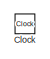
[diagram: root canvas - part 1/4, top left region]
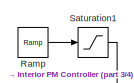
[diagram: root canvas - part 2/4, central region]
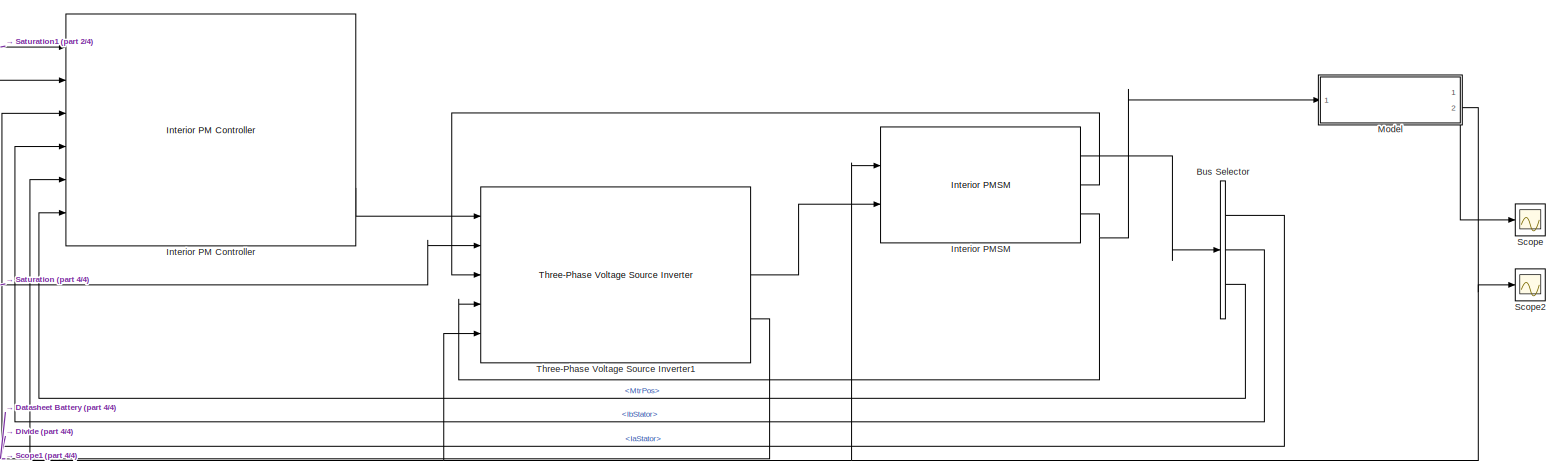
[diagram: root canvas - part 3/4, bottom right region]
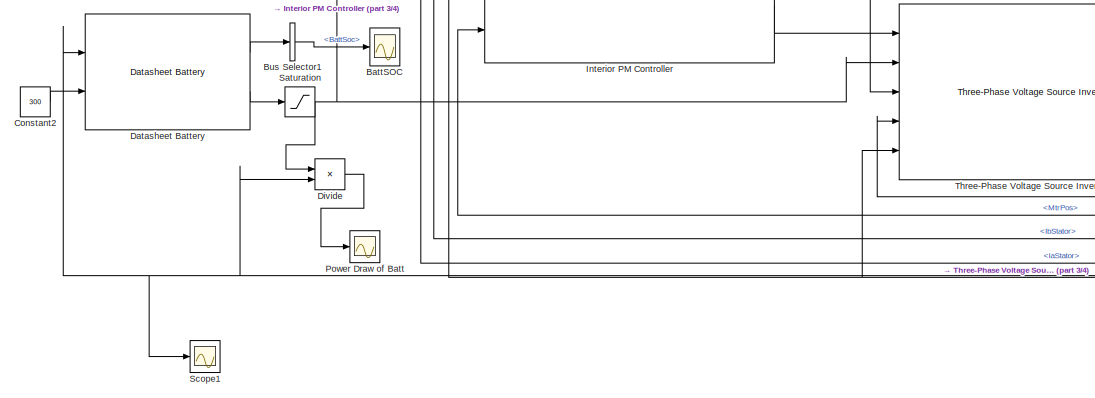
[diagram: root canvas - part 4/4, bottom center region]
MODEL slx_6a93736acad2
KIND model
CONFIG AbsTol = auto
CONFIG EnableMultiTasking = off
CONFIG FixedStep = auto
CONFIG MaxStep = auto
CONFIG MinStep = auto
CONFIG RelTol = 1e-3
CONFIG SampleTimeConstraint = Unconstrained
CONFIG Solver = VariableStepAuto
CONFIG SolverName = VariableStepAuto
CONFIG StartTime = 0.0
CONFIG StopTime = 10.0
BLOCK [Scope] BattSOC
  Floating = off
  NumInputPorts = 1
  Ports = [1]
  ScopeSpecificationString = Simulink.scopes.TimeScopeBlockCfg('CurrentConfiguration', extmgr.ConfigurationSet(extmgr.Configuration('Core','General UI',true),extmgr.Configuration('Core','Source UI',true),extmgr.Configuration('Sources','WiredSimulink',true,'DataLoggingVariableName','ScopeData1'),extmgr.Configuration('Visuals','Time Domain',true,'SerializedDisplays',{struct('MinYLimReal','0','MaxYLimReal','1','YLabelReal','','M...<+1368ch>
BLOCK [BusSelector] Bus Selector
  AttributesFormatString = %<OutputSignals>
  OutputSignals = IaStator,IbStator,MtrPos
  Ports = [1, 3]
BLOCK [BusSelector] Bus Selector1
  OutputSignals = BattSoc
  Ports = [1, 1]
BLOCK [Clock] Clock
  IOType = siggen
BLOCK [Constant] Constant2
  Value = 300
BLOCK [Reference] Datasheet Battery  REF=autolibdatasheetbattery/Datasheet Battery
  Ports = [2, 2]
  SourceBlock = autolibdatasheetbattery/Datasheet Battery
  SourceProductBaseCode = PW
  SourceType = Datasheet Battery
BLOCK [Product] Divide
  Inputs = **
  Ports = [2, 1]
BLOCK [Reference] Interior PM Controller  REF=autolibmotorctrlr/Interior PM Controller
  Ports = [6, 3]
  SourceBlock = autolibmotorctrlr/Interior PM Controller
  SourceProductBaseCode = PW
  SourceType = Interior PM Controller
BLOCK [Reference] Interior PMSM  REF=autolibpmsminterior/Interior PMSM
  Ports = [2, 3]
  SourceBlock = autolibpmsminterior/Interior PMSM
  SourceProductBaseCode = PW,MT,VE,VP
  SourceType = Interior PMSM
BLOCK [ModelReference] Model
  ModelNameDialog = Traction_Model.slx
  ModelReferenceVersion = 1.18
  PortSchema = {"entries":[{"content":{"sides":[{"content":{"connectorIds":["In1"]},"type":"ConnectorPlacement.EquallySpacedRectSide","uuid":"2c404015-eff0-4c93-ac5e-9539bc24a122"},{"content":{"connectorIds":["Out2"],"side":"RIGHT"},"type":"ConnectorPlacement.EquallySpacedRectSide","uuid":"e336d8c9-6427-42a1-9e1d-a94430f306bf"},{"content":{"connectorIds":[],"side":"TOP"},"type":"ConnectorPlacement.EquallySpacedR...<+392ch>
  Ports = [1, 2]
BLOCK [Scope] Power Draw of Batt
  Floating = off
  NumInputPorts = 1
  Ports = [1]
  ScopeSpecificationString = Simulink.scopes.TimeScopeBlockCfg('CurrentConfiguration', extmgr.ConfigurationSet(extmgr.Configuration('Core','General UI',true),extmgr.Configuration('Core','Source UI',true),extmgr.Configuration('Sources','WiredSimulink',true,'DataLoggingVariableName','ScopeData2'),extmgr.Configuration('Visuals','Time Domain',true,'SerializedDisplays',{struct('MinYLimReal','-798.28945','MaxYLimReal','49885.18911'...<+1461ch>
BLOCK [Reference] Ramp  REF=simulink/Sources/Ramp
  Ports = [0, 1]
  SourceBlock = simulink/Sources/Ramp
  SourceProductBaseCode = SL
  SourceType = Ramp
BLOCK [Saturate] Saturation
  LowerLimit = 0
  UpperLimit = 600
BLOCK [Saturate] Saturation1
  LowerLimit = 0
  UpperLimit = 250
BLOCK [Scope] Scope
  Floating = off
  NumInputPorts = 1
  Ports = [1]
  ScopeSpecificationString = Simulink.scopes.TimeScopeBlockCfg('CurrentConfiguration', extmgr.ConfigurationSet(extmgr.Configuration('Core','General UI',true),extmgr.Configuration('Core','Source UI',true),extmgr.Configuration('Sources','WiredSimulink',true),extmgr.Configuration('Visuals','Time Domain',true,'SerializedDisplays',{struct('MinYLimReal','-0.01337','MaxYLimReal','0.12037','YLabelReal','','MinYLimMag','0.00000','MaxY...<+1356ch>
BLOCK [Scope] Scope1
  Floating = off
  NumInputPorts = 1
  Ports = [1]
  ScopeSpecificationString = Simulink.scopes.TimeScopeBlockCfg('CurrentConfiguration', extmgr.ConfigurationSet(extmgr.Configuration('Core','General UI',true),extmgr.Configuration('Core','Source UI',true),extmgr.Configuration('Sources','WiredSimulink',true,'DataLoggingVariableName','ScopeData1'),extmgr.Configuration('Visuals','Time Domain',true,'SerializedDisplays',{struct('MinYLimReal','-204.68309','MaxYLimReal','310.58358','...<+1454ch>
BLOCK [Scope] Scope2
  Floating = off
  NumInputPorts = 1
  Ports = [1]
  ScopeSpecificationString = Simulink.scopes.TimeScopeBlockCfg('CurrentConfiguration', extmgr.ConfigurationSet(extmgr.Configuration('Core','General UI',true),extmgr.Configuration('Core','Source UI',true),extmgr.Configuration('Sources','WiredSimulink',true,'DataLoggingVariableName','ScopeData1'),extmgr.Configuration('Visuals','Time Domain',true,'SerializedDisplays',{struct('MinYLimReal','-0.01548','MaxYLimReal','0.13931','YLab...<+1395ch>
BLOCK [Reference] Three-Phase Voltage Source Inverter1  REF=autolibinverter/Three-Phase Voltage Source Inverter
  Ports = [5, 3]
  SourceBlock = autolibinverter/Three-Phase Voltage Source Inverter
  SourceProductBaseCode = PW,MT,VE,VP
  SourceType = Three-Phase Voltage Source Inverter
LINE Bus Selector1:1 -> BattSOC:1
LINE Bus Selector:1 -> Interior PM Controller:3
LINE Bus Selector:2 -> Interior PM Controller:4
LINE Bus Selector:3 -> Interior PM Controller:6
LINE Constant2:1 -> Datasheet Battery:2
LINE Datasheet Battery:1 -> Bus Selector1:1
LINE Datasheet Battery:2 -> Saturation:1
LINE Divide:1 -> Power Draw of Batt:1
LINE Interior PM Controller:3 -> Three-Phase Voltage Source Inverter1:1
LINE Interior PMSM:1 -> Bus Selector:1
LINE Interior PMSM:2 -> Three-Phase Voltage Source Inverter1:3
NET Interior PMSM:3 -> Model:1, Three-Phase Voltage Source Inverter1:4
LINE Model:1 -> Scope:1
NET Model:2 -> Interior PM Controller:5, Interior PMSM:1, Scope2:1, Three-Phase Voltage Source Inverter1:5
LINE Ramp:1 -> Saturation1:1
LINE Saturation1:1 -> Interior PM Controller:1
NET Saturation:1 -> Divide:1, Interior PM Controller:2, Three-Phase Voltage Source Inverter1:2
LINE Three-Phase Voltage Source Inverter1:2 -> Interior PMSM:2
NET Three-Phase Voltage Source Inverter1:3 -> Datasheet Battery:1, Divide:2, Scope1:1
note: NET lines group one-source signal fan-out (src -> all destinations, sorted); 1:1 wires keep LINE
